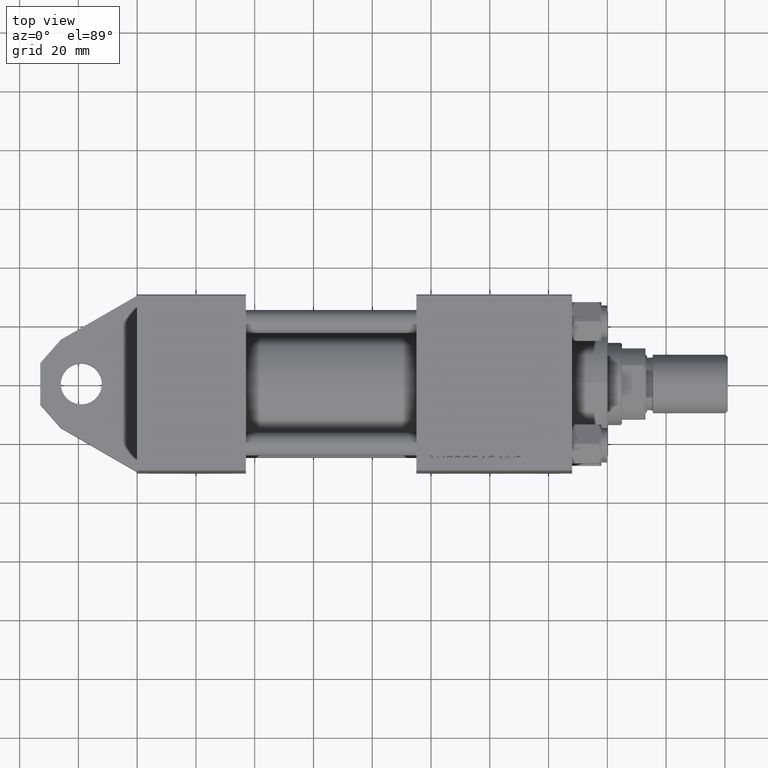
[diagram: clean part render]
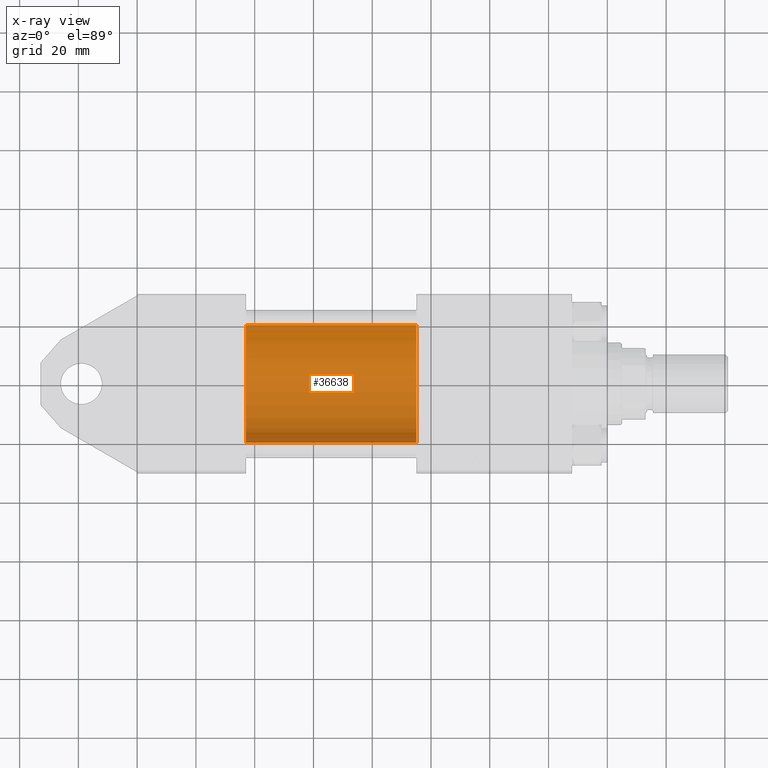
[diagram: x-ray — body ghosted, one internal face saturated and labeled with its STEP entity id]
A machine part, top view, then the same camera in x-ray: the body is ghosted and one INTERNAL B-rep face — a face not visible from any outside direction — is saturated and labeled: STEP entity #36638.
In plain terms, the highlighted cylindrical surface (partial cylindrical patch) has radius 20 mm, axis along (-1, -0, 0).
Its self-contained STEP definition (entity closure, byte-faithful):
#1839 = ORIENTED_EDGE ( 'NONE', *, *, #11998, .T. ) ;
#2140 = CARTESIAN_POINT ( 'NONE',  ( 37.00000000000000000, -2.602085213965210642E-15, 0.000000000000000000 ) ) ;
#3367 = VERTEX_POINT ( 'NONE', #4176 ) ;
#4176 = CARTESIAN_POINT ( 'NONE',  ( 95.00000000000000000, -1.527916156705046464E-16, -20.00000000000000000 ) ) ;
#4185 = LINE ( 'NONE', #11026, #5641 ) ;
#5641 = VECTOR ( 'NONE', #46543, 1000.000000000000000 ) ;
#5661 = EDGE_CURVE ( 'NONE', #3367, #40284, #42677, .T. ) ;
#6081 = EDGE_LOOP ( 'NONE', ( #1839, #28081, #40885, #21701 ) ) ;
#7243 = DIRECTION ( 'NONE',  ( 1.000000000000000000, 0.000000000000000000, 0.000000000000000000 ) ) ;
#10521 = AXIS2_PLACEMENT_3D ( 'NONE', #2140, #41434, #27796 ) ;
#11026 = CARTESIAN_POINT ( 'NONE',  ( 95.00000000000000000, -2.602085213965210642E-15, 20.00000000000000000 ) ) ;
#11641 = VERTEX_POINT ( 'NONE', #39058 ) ;
#11985 = CIRCLE ( 'NONE', #10521, 20.00000000000000000 ) ;
#11998 = EDGE_CURVE ( 'NONE', #11641, #3367, #39436, .T. ) ;
#12021 = CARTESIAN_POINT ( 'NONE',  ( 37.00000000000000000, -2.602085213965210642E-15, 20.00000000000000000 ) ) ;
#13576 = DIRECTION ( 'NONE',  ( -1.000000000000000000, -0.000000000000000000, -0.000000000000000000 ) ) ;
#15367 = AXIS2_PLACEMENT_3D ( 'NONE', #35460, #7243, #35929 ) ;
#16700 = EDGE_CURVE ( 'NONE', #11641, #20367, #4185, .T. ) ;
#20367 = VERTEX_POINT ( 'NONE', #12021 ) ;
#21701 = ORIENTED_EDGE ( 'NONE', *, *, #16700, .F. ) ;
#23873 = DIRECTION ( 'NONE',  ( -1.000000000000000000, -0.000000000000000000, -0.000000000000000000 ) ) ;
#27071 = EDGE_CURVE ( 'NONE', #20367, #40284, #11985, .T. ) ;
#27796 = DIRECTION ( 'NONE',  ( 0.000000000000000000, 0.000000000000000000, -1.000000000000000000 ) ) ;
#28081 = ORIENTED_EDGE ( 'NONE', *, *, #5661, .T. ) ;
#33522 = AXIS2_PLACEMENT_3D ( 'NONE', #38520, #13576, #37643 ) ;
#34973 = FACE_OUTER_BOUND ( 'NONE', #6081, .T. ) ;
#35460 = CARTESIAN_POINT ( 'NONE',  ( 95.00000000000000000, -2.602085213965210642E-15, 0.000000000000000000 ) ) ;
#35929 = DIRECTION ( 'NONE',  ( 0.000000000000000000, 0.000000000000000000, -1.000000000000000000 ) ) ;
#36638 = ADVANCED_FACE ( 'NONE', ( #34973 ), #46501, .F. ) ;
#37643 = DIRECTION ( 'NONE',  ( 0.000000000000000000, 0.000000000000000000, 1.000000000000000000 ) ) ;
#38520 = CARTESIAN_POINT ( 'NONE',  ( 95.00000000000000000, -2.602085213965210642E-15, 0.000000000000000000 ) ) ;
#39023 = CARTESIAN_POINT ( 'NONE',  ( 37.00000000000000000, -1.527916156705046464E-16, -20.00000000000000000 ) ) ;
#39058 = CARTESIAN_POINT ( 'NONE',  ( 95.00000000000000000, -2.602085213965210642E-15, 20.00000000000000000 ) ) ;
#39436 = CIRCLE ( 'NONE', #15367, 20.00000000000000000 ) ;
#40284 = VERTEX_POINT ( 'NONE', #39023 ) ;
#40885 = ORIENTED_EDGE ( 'NONE', *, *, #27071, .F. ) ;
#41434 = DIRECTION ( 'NONE',  ( 1.000000000000000000, 0.000000000000000000, 0.000000000000000000 ) ) ;
#42677 = LINE ( 'NONE', #45261, #45970 ) ;
#45261 = CARTESIAN_POINT ( 'NONE',  ( 95.00000000000000000, -1.527916156705046464E-16, -20.00000000000000000 ) ) ;
#45970 = VECTOR ( 'NONE', #23873, 1000.000000000000000 ) ;
#46501 = CYLINDRICAL_SURFACE ( 'NONE', #33522, 20.00000000000000000 ) ;
#46543 = DIRECTION ( 'NONE',  ( -1.000000000000000000, -0.000000000000000000, -0.000000000000000000 ) ) ;